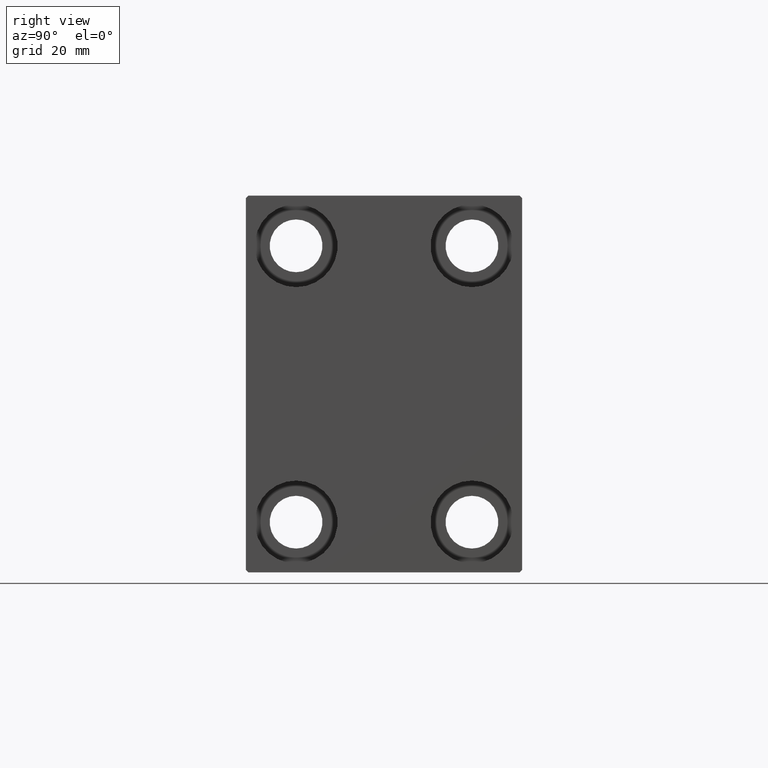
[diagram: clean part render]
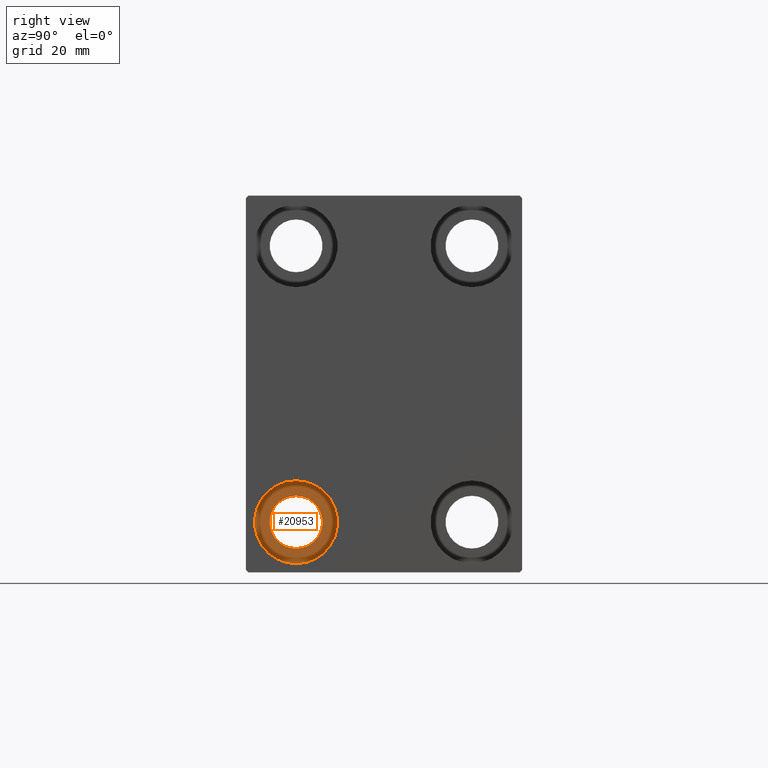
[diagram: same view with one face highlighted and labeled with its STEP entity id]
A machine part, right view. The second image highlights one B-rep face of the part: STEP entity #20953.
In plain terms, the highlighted planar face has unit normal (1, 0, 0).
Its self-contained STEP definition (entity closure, byte-faithful):
#1418 = CARTESIAN_POINT ( 'NONE',  ( 64.00000000000000000, -17.50000000000000355, -27.50000000000000355 ) ) ;
#1476 = DIRECTION ( 'NONE',  ( 0.000000000000000000, 0.000000000000000000, -1.000000000000000000 ) ) ;
#2719 = CARTESIAN_POINT ( 'NONE',  ( 64.00000000000000000, -17.50000000000000355, -27.50000000000000355 ) ) ;
#3043 = EDGE_CURVE ( 'NONE', #9919, #21165, #8243, .T. ) ;
#3707 = AXIS2_PLACEMENT_3D ( 'NONE', #42374, #25302, #1476 ) ;
#4512 = DIRECTION ( 'NONE',  ( 0.000000000000000000, 0.000000000000000000, 1.000000000000000000 ) ) ;
#5160 = AXIS2_PLACEMENT_3D ( 'NONE', #1418, #12218, #8389 ) ;
#6955 = CARTESIAN_POINT ( 'NONE',  ( 64.00000000000000000, -17.50000000000000355, -35.75000000000000711 ) ) ;
#7450 = FACE_BOUND ( 'NONE', #44113, .T. ) ;
#8052 = CIRCLE ( 'NONE', #3707, 5.249999999999997335 ) ;
#8243 = CIRCLE ( 'NONE', #23312, 5.249999999999997335 ) ;
#8385 = AXIS2_PLACEMENT_3D ( 'NONE', #11043, #31052, #4512 ) ;
#8389 = DIRECTION ( 'NONE',  ( 0.000000000000000000, 0.000000000000000000, 1.000000000000000000 ) ) ;
#9919 = VERTEX_POINT ( 'NONE', #35181 ) ;
#10459 = EDGE_CURVE ( 'NONE', #18305, #30356, #14849, .T. ) ;
#11043 = CARTESIAN_POINT ( 'NONE',  ( 64.00000000000000000, 0.000000000000000000, 0.000000000000000000 ) ) ;
#12218 = DIRECTION ( 'NONE',  ( -1.000000000000000000, -0.000000000000000000, -0.000000000000000000 ) ) ;
#14849 = CIRCLE ( 'NONE', #39977, 8.250000000000000000 ) ;
#18305 = VERTEX_POINT ( 'NONE', #38241 ) ;
#20043 = DIRECTION ( 'NONE',  ( -1.000000000000000000, -0.000000000000000000, -0.000000000000000000 ) ) ;
#20953 = ADVANCED_FACE ( 'NONE', ( #28111, #7450 ), #41829, .T. ) ;
#21165 = VERTEX_POINT ( 'NONE', #42216 ) ;
#21328 = ORIENTED_EDGE ( 'NONE', *, *, #40284, .F. ) ;
#21497 = ORIENTED_EDGE ( 'NONE', *, *, #39895, .T. ) ;
#23000 = ORIENTED_EDGE ( 'NONE', *, *, #3043, .T. ) ;
#23312 = AXIS2_PLACEMENT_3D ( 'NONE', #2719, #44061, #30590 ) ;
#25302 = DIRECTION ( 'NONE',  ( -1.000000000000000000, -0.000000000000000000, -0.000000000000000000 ) ) ;
#28111 = FACE_OUTER_BOUND ( 'NONE', #40964, .T. ) ;
#28119 = CIRCLE ( 'NONE', #5160, 8.250000000000000000 ) ;
#30356 = VERTEX_POINT ( 'NONE', #6955 ) ;
#30370 = DIRECTION ( 'NONE',  ( 0.000000000000000000, 0.000000000000000000, 1.000000000000000000 ) ) ;
#30590 = DIRECTION ( 'NONE',  ( 0.000000000000000000, 0.000000000000000000, -1.000000000000000000 ) ) ;
#31052 = DIRECTION ( 'NONE',  ( 1.000000000000000000, 0.000000000000000000, -0.000000000000000000 ) ) ;
#33519 = CARTESIAN_POINT ( 'NONE',  ( 64.00000000000000000, -17.50000000000000355, -27.50000000000000355 ) ) ;
#35181 = CARTESIAN_POINT ( 'NONE',  ( 64.00000000000000000, -17.50000000000000355, -32.75000000000000000 ) ) ;
#38241 = CARTESIAN_POINT ( 'NONE',  ( 64.00000000000000000, -17.50000000000000355, -19.25000000000000355 ) ) ;
#39359 = ORIENTED_EDGE ( 'NONE', *, *, #10459, .F. ) ;
#39895 = EDGE_CURVE ( 'NONE', #21165, #9919, #8052, .T. ) ;
#39977 = AXIS2_PLACEMENT_3D ( 'NONE', #33519, #20043, #30370 ) ;
#40284 = EDGE_CURVE ( 'NONE', #30356, #18305, #28119, .T. ) ;
#40964 = EDGE_LOOP ( 'NONE', ( #21328, #39359 ) ) ;
#41829 = PLANE ( 'NONE',  #8385 ) ;
#42216 = CARTESIAN_POINT ( 'NONE',  ( 64.00000000000000000, -17.50000000000000355, -22.25000000000000355 ) ) ;
#42374 = CARTESIAN_POINT ( 'NONE',  ( 64.00000000000000000, -17.50000000000000355, -27.50000000000000355 ) ) ;
#44061 = DIRECTION ( 'NONE',  ( -1.000000000000000000, -0.000000000000000000, -0.000000000000000000 ) ) ;
#44113 = EDGE_LOOP ( 'NONE', ( #21497, #23000 ) ) ;